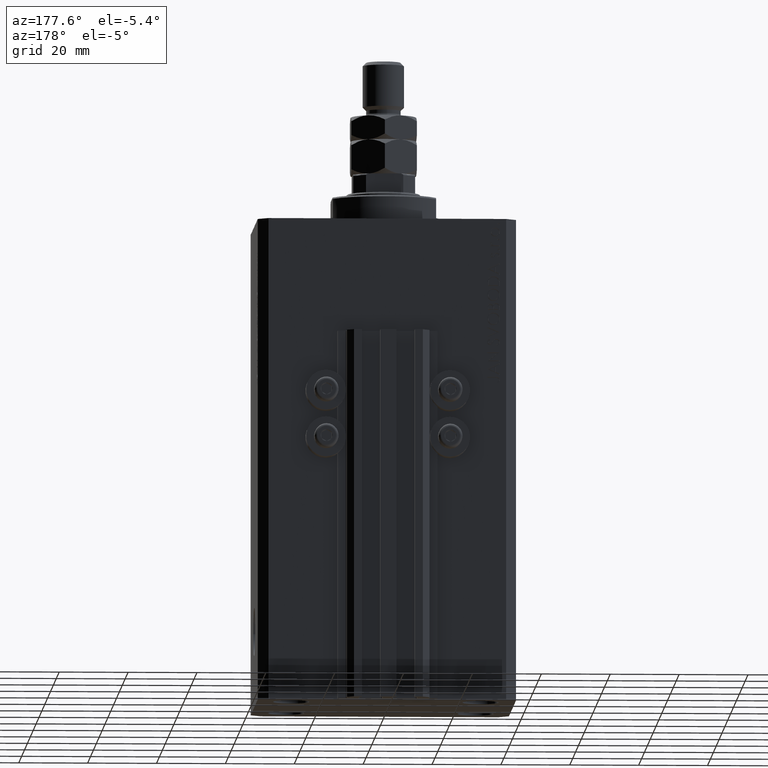
[diagram: clean part render]
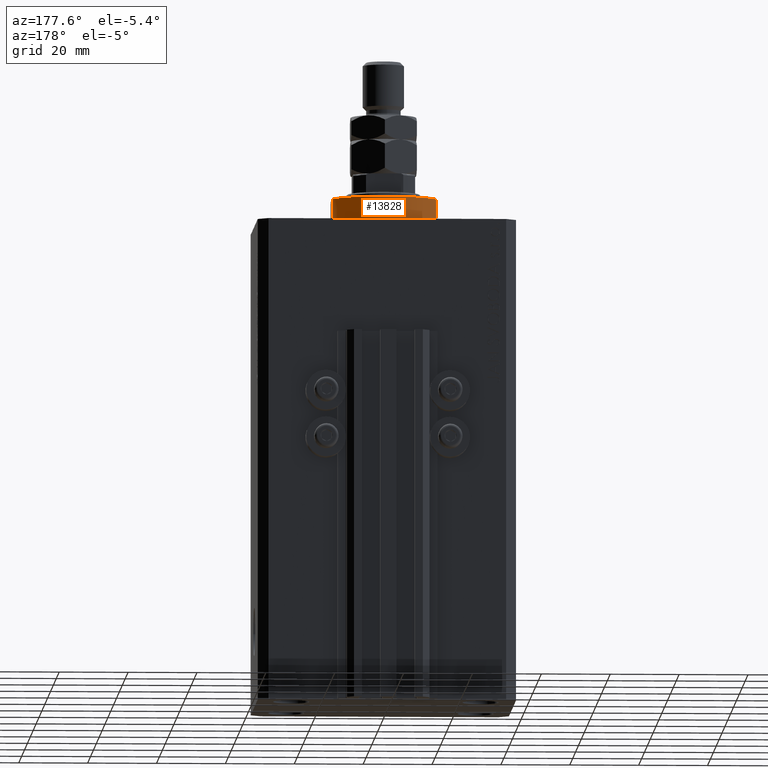
[diagram: same view with one face highlighted and labeled with its STEP entity id]
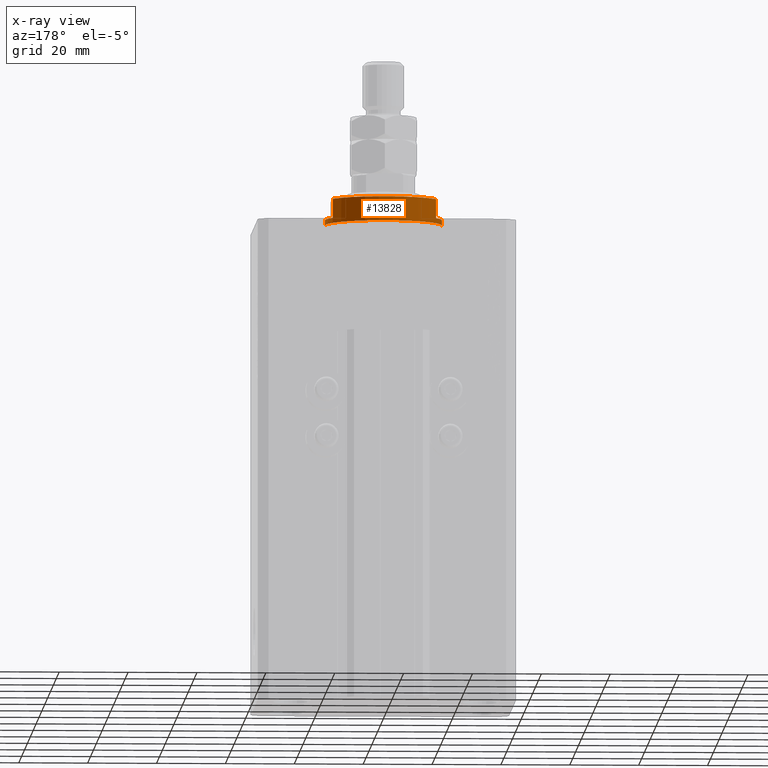
[diagram: x-ray of the same camera — body ghosted, the highlighted face saturated]
A machine part, auxiliary view. The second image highlights one B-rep face of the part: STEP entity #13828.
The next image is the same camera in x-ray: the body ghosted, the highlighted face saturated — about 1% of this face is hidden behind the body in this view.
In plain terms, the highlighted cylindrical surface (partial cylindrical patch) has radius 17 mm, axis along (0, 0, -1).
Its self-contained STEP definition (entity closure, byte-faithful):
#1842 = VERTEX_POINT ( 'NONE', #8495 ) ;
#3486 = DIRECTION ( 'NONE',  ( -1.000000000000000000, 0.000000000000000000, 0.000000000000000000 ) ) ;
#3953 = LINE ( 'NONE', #33569, #47579 ) ;
#4689 = DIRECTION ( 'NONE',  ( 1.000000000000000000, 0.000000000000000000, 0.000000000000000000 ) ) ;
#5359 = EDGE_CURVE ( 'NONE', #30305, #34277, #26863, .T. ) ;
#6128 = VECTOR ( 'NONE', #29000, 1000.000000000000000 ) ;
#6272 = EDGE_CURVE ( 'NONE', #34277, #25752, #12975, .T. ) ;
#6273 = DIRECTION ( 'NONE',  ( -1.000000000000000000, 0.000000000000000000, 0.000000000000000000 ) ) ;
#6878 = CIRCLE ( 'NONE', #35246, 17.00000000000000000 ) ;
#7120 = ORIENTED_EDGE ( 'NONE', *, *, #5359, .T. ) ;
#7190 = DIRECTION ( 'NONE',  ( -0.000000000000000000, -0.000000000000000000, 1.000000000000000000 ) ) ;
#7199 = DIRECTION ( 'NONE',  ( 0.000000000000000000, 0.000000000000000000, -1.000000000000000000 ) ) ;
#8158 = DIRECTION ( 'NONE',  ( -0.000000000000000000, -0.000000000000000000, -1.000000000000000000 ) ) ;
#8495 = CARTESIAN_POINT ( 'NONE',  ( 17.00000000000000000, 0.000000000000000000, -0.5000000000000004441 ) ) ;
#9103 = VERTEX_POINT ( 'NONE', #11727 ) ;
#9272 = CARTESIAN_POINT ( 'NONE',  ( -15.00000000000000000, 8.000000000000001776, -8.000000000000000000 ) ) ;
#10778 = ORIENTED_EDGE ( 'NONE', *, *, #26027, .F. ) ;
#10964 = CARTESIAN_POINT ( 'NONE',  ( 17.00000000000000000, 0.000000000000000000, -8.000000000000000000 ) ) ;
#11727 = CARTESIAN_POINT ( 'NONE',  ( -17.00000000000000000, 2.081899558550500280E-15, -0.5000000000000004441 ) ) ;
#11814 = EDGE_CURVE ( 'NONE', #9103, #1842, #15897, .T. ) ;
#12524 = CARTESIAN_POINT ( 'NONE',  ( 15.00000000000000000, 8.000000000000001776, -7.500000000000013323 ) ) ;
#12829 = DIRECTION ( 'NONE',  ( 1.000000000000000000, 0.000000000000000000, 0.000000000000000000 ) ) ;
#12975 = LINE ( 'NONE', #9272, #43407 ) ;
#13425 = DIRECTION ( 'NONE',  ( 0.000000000000000000, 0.000000000000000000, 1.000000000000000000 ) ) ;
#13828 = ADVANCED_FACE ( 'NONE', ( #34557 ), #38988, .T. ) ;
#15087 = ORIENTED_EDGE ( 'NONE', *, *, #29737, .F. ) ;
#15186 = EDGE_CURVE ( 'NONE', #40105, #25752, #38867, .T. ) ;
#15543 = CARTESIAN_POINT ( 'NONE',  ( 0.000000000000000000, 0.000000000000000000, -0.5000000000000004441 ) ) ;
#15897 = CIRCLE ( 'NONE', #30089, 17.00000000000000000 ) ;
#15930 = CARTESIAN_POINT ( 'NONE',  ( -17.00000000000000000, 2.081899558550500280E-15, -2.000000000000000000 ) ) ;
#15954 = EDGE_CURVE ( 'NONE', #40105, #9103, #3953, .T. ) ;
#20353 = DIRECTION ( 'NONE',  ( -0.000000000000000000, -0.000000000000000000, 1.000000000000000000 ) ) ;
#21827 = VERTEX_POINT ( 'NONE', #22917 ) ;
#21891 = VECTOR ( 'NONE', #20353, 1000.000000000000000 ) ;
#22231 = DIRECTION ( 'NONE',  ( 0.000000000000000000, 0.000000000000000000, -1.000000000000000000 ) ) ;
#22461 = CARTESIAN_POINT ( 'NONE',  ( 0.000000000000000000, 0.000000000000000000, -2.000000000000000000 ) ) ;
#22709 = CARTESIAN_POINT ( 'NONE',  ( -14.99999999999999645, 8.000000000000003553, -2.000000000000000000 ) ) ;
#22917 = CARTESIAN_POINT ( 'NONE',  ( 14.99999999999999645, 8.000000000000003553, -2.000000000000000000 ) ) ;
#22953 = CARTESIAN_POINT ( 'NONE',  ( 17.00000000000000000, 0.000000000000000000, -2.000000000000000000 ) ) ;
#23585 = CARTESIAN_POINT ( 'NONE',  ( 15.00000000000000000, 8.000000000000001776, -8.000000000000000000 ) ) ;
#24043 = VERTEX_POINT ( 'NONE', #22953 ) ;
#24087 = EDGE_LOOP ( 'NONE', ( #35551, #40194, #48613, #15087, #30212, #10778, #7120, #26409 ) ) ;
#24971 = EDGE_CURVE ( 'NONE', #21827, #24043, #6878, .T. ) ;
#25459 = DIRECTION ( 'NONE',  ( -1.000000000000000000, 0.000000000000000000, 0.000000000000000000 ) ) ;
#25752 = VERTEX_POINT ( 'NONE', #22709 ) ;
#26027 = EDGE_CURVE ( 'NONE', #30305, #21827, #39350, .T. ) ;
#26234 = AXIS2_PLACEMENT_3D ( 'NONE', #38503, #35276, #12829 ) ;
#26409 = ORIENTED_EDGE ( 'NONE', *, *, #6272, .T. ) ;
#26863 = CIRCLE ( 'NONE', #35507, 17.00000000000000000 ) ;
#29000 = DIRECTION ( 'NONE',  ( -0.000000000000000000, -0.000000000000000000, 1.000000000000000000 ) ) ;
#29737 = EDGE_CURVE ( 'NONE', #24043, #1842, #48726, .T. ) ;
#29882 = CARTESIAN_POINT ( 'NONE',  ( 0.000000000000000000, 0.000000000000000000, -2.000000000000000000 ) ) ;
#30089 = AXIS2_PLACEMENT_3D ( 'NONE', #15543, #8158, #4689 ) ;
#30212 = ORIENTED_EDGE ( 'NONE', *, *, #24971, .F. ) ;
#30305 = VERTEX_POINT ( 'NONE', #12524 ) ;
#33569 = CARTESIAN_POINT ( 'NONE',  ( -17.00000000000000000, 2.081899558550500280E-15, -8.000000000000000000 ) ) ;
#34277 = VERTEX_POINT ( 'NONE', #46778 ) ;
#34557 = FACE_OUTER_BOUND ( 'NONE', #24087, .T. ) ;
#35246 = AXIS2_PLACEMENT_3D ( 'NONE', #29882, #7199, #3486 ) ;
#35276 = DIRECTION ( 'NONE',  ( -0.000000000000000000, -0.000000000000000000, 1.000000000000000000 ) ) ;
#35507 = AXIS2_PLACEMENT_3D ( 'NONE', #35877, #13425, #6273 ) ;
#35551 = ORIENTED_EDGE ( 'NONE', *, *, #15186, .F. ) ;
#35877 = CARTESIAN_POINT ( 'NONE',  ( 0.000000000000000000, 0.000000000000000000, -7.500000000000013323 ) ) ;
#38503 = CARTESIAN_POINT ( 'NONE',  ( 0.000000000000000000, 0.000000000000000000, -8.000000000000000000 ) ) ;
#38867 = CIRCLE ( 'NONE', #45161, 17.00000000000000000 ) ;
#38988 = CYLINDRICAL_SURFACE ( 'NONE', #26234, 17.00000000000000000 ) ;
#39350 = LINE ( 'NONE', #23585, #21891 ) ;
#40105 = VERTEX_POINT ( 'NONE', #15930 ) ;
#40194 = ORIENTED_EDGE ( 'NONE', *, *, #15954, .T. ) ;
#43407 = VECTOR ( 'NONE', #47523, 1000.000000000000000 ) ;
#45161 = AXIS2_PLACEMENT_3D ( 'NONE', #22461, #22231, #25459 ) ;
#46778 = CARTESIAN_POINT ( 'NONE',  ( -15.00000000000000000, 8.000000000000001776, -7.500000000000013323 ) ) ;
#47523 = DIRECTION ( 'NONE',  ( -0.000000000000000000, -0.000000000000000000, 1.000000000000000000 ) ) ;
#47579 = VECTOR ( 'NONE', #7190, 1000.000000000000000 ) ;
#48613 = ORIENTED_EDGE ( 'NONE', *, *, #11814, .T. ) ;
#48726 = LINE ( 'NONE', #10964, #6128 ) ;